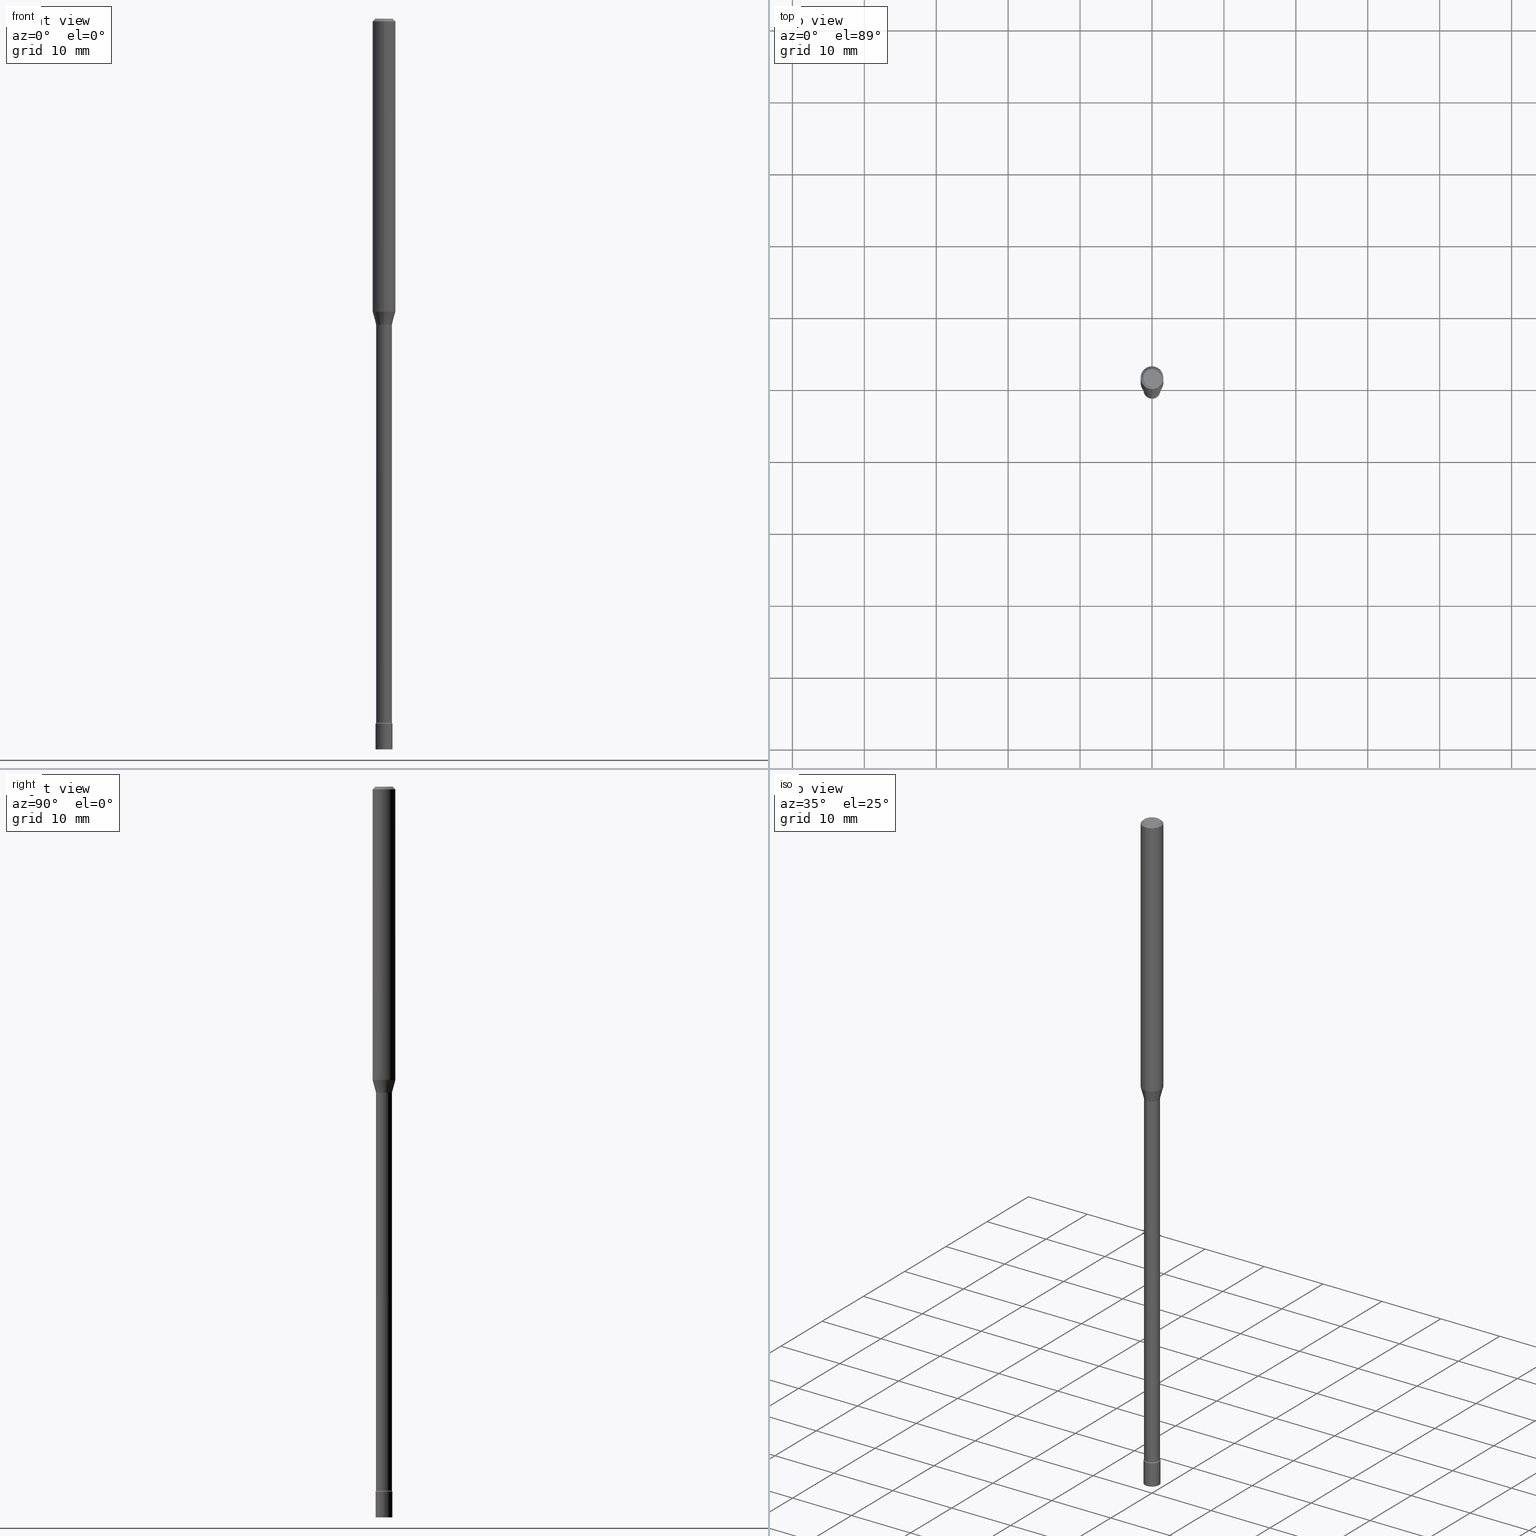
[diagram: canonical four-view strip — front | top / right | iso, engineering-drawing reading convention]
A machine part, canonical four-view strip (front | top / right | iso — engineering-drawing reading convention). The complete STEP part file that produces these views, byte-faithful:
ISO-10303-21;
HEADER;
FILE_DESCRIPTION (( 'STEP AP203' ),
    '1' );
FILE_NAME ('03691.STEP',
    '2024-03-08T22:39:06',
    ( '' ),
    ( '' ),
    'SwSTEP 2.0',
    'SolidWorks 2023',
    '' );
FILE_SCHEMA (( 'CONFIG_CONTROL_DESIGN' ));
ENDSEC;

DATA;
#1 = ADVANCED_FACE ( 'NONE', ( #225 ), #301, .T. ) ;
#2 = DIRECTION ( 'NONE',  ( -6.982962677686265922E-15, -1.000000000000000000, 3.491503379829358558E-15 ) ) ;
#3 = EDGE_LOOP ( 'NONE', ( #509, #279 ) ) ;
#4 = TOROIDAL_SURFACE ( 'NONE', #190, 0.05870000000000027973, 0.01500000000000003587 ) ;
#5 = CARTESIAN_POINT ( 'NONE',  ( 3.247077645125057656E-16, 0.04649999999998652433, -3.859999999999999876 ) ) ;
#6 = COORDINATED_UNIVERSAL_TIME_OFFSET ( 5, 0, .BEHIND. ) ;
#7 = CIRCLE ( 'NONE', #300, 0.01500000000000001853 ) ;
#8 = DIRECTION ( 'NONE',  ( -6.982962677686266711E-15, -1.000000000000000000, 6.179098042681422745E-15 ) ) ;
#9 = PRODUCT_DEFINITION ( 'UNKNOWN', '', #506, #215 ) ;
#10 = PERSON_AND_ORGANIZATION ( #109, #440 ) ;
#11 = CARTESIAN_POINT ( 'NONE',  ( 7.070506196117639587E-46, -1.009493623102914564E-31, -2.891286398102390037E-17 ) ) ;
#12 = DIRECTION ( 'NONE',  ( -2.445453415046726170E-29, 3.491503379829358558E-15, 1.000000000000000000 ) ) ;
#13 = CIRCLE ( 'NONE', #458, 0.01500000000000003587 ) ;
#14 = CARTESIAN_POINT ( 'NONE',  ( 0.000000000000000000, 0.000000000000000000, 0.000000000000000000 ) ) ;
#15 = FACE_OUTER_BOUND ( 'NONE', #467, .T. ) ;
#16 = CARTESIAN_POINT ( 'NONE',  ( 4.100963720950633802E-29, -5.855163138318515071E-15, -1.676974787463810790 ) ) ;
#17 = VERTEX_POINT ( 'NONE', #477 ) ;
#18 = CIRCLE ( 'NONE', #317, 0.04649999999999999967 ) ;
#19 = APPROVAL_PERSON_ORGANIZATION ( #117, #461, #275 ) ;
#20 = VERTEX_POINT ( 'NONE', #69 ) ;
#21 = ADVANCED_FACE ( 'NONE', ( #273 ), #162, .F. ) ;
#22 = VERTEX_POINT ( 'NONE', #400 ) ;
#23 = AXIS2_PLACEMENT_3D ( 'NONE', #501, #455, #213 ) ;
#24 = EDGE_LOOP ( 'NONE', ( #55, #57, #505, #320 ) ) ;
#25 = AXIS2_PLACEMENT_3D ( 'NONE', #334, #371, #404 ) ;
#26 = CIRCLE ( 'NONE', #169, 0.04370000000000000273 ) ;
#27 = CARTESIAN_POINT ( 'NONE',  ( 9.418108784244767125E-29, -1.344673280196705640E-14, -3.851273030308292267 ) ) ;
#28 = ORIENTED_EDGE ( 'NONE', *, *, #395, .T. ) ;
#29 = CARTESIAN_POINT ( 'NONE',  ( 3.105071755271645895E-16, 0.04370000000000012069, -1.525786976985433665E-16 ) ) ;
#30 = DIRECTION ( 'NONE',  ( -2.445453415046726170E-29, 3.491503379829358558E-15, 1.000000000000000000 ) ) ;
#31 = ORIENTED_EDGE ( 'NONE', *, *, #395, .F. ) ;
#32 = COORDINATED_UNIVERSAL_TIME_OFFSET ( 5, 0, .BEHIND. ) ;
#33 = MANIFOLD_SOLID_BREP ( 'Body-Move/Copy2[1]', #343 ) ;
#34 = CARTESIAN_POINT ( 'NONE',  ( 0.000000000000000000, 0.000000000000000000, 0.000000000000000000 ) ) ;
#35 = CC_DESIGN_PERSON_AND_ORGANIZATION_ASSIGNMENT ( #10, #333, ( #9 ) ) ;
#36 = FACE_OUTER_BOUND ( 'NONE', #193, .T. ) ;
#37 = LINE ( 'NONE', #368, #500 ) ;
#38 = AXIS2_PLACEMENT_3D ( 'NONE', #196, #166, #513 ) ;
#39 = EDGE_CURVE ( 'NONE', #22, #392, #96, .T. ) ;
#40 = DIRECTION ( 'NONE',  ( -1.000000000000000000, 6.982962677686265922E-15, -4.883557194083112340E-29 ) ) ;
#41 = CLOSED_SHELL ( 'NONE', ( #123, #484, #21, #465, #182, #154, #471, #426, #474, #48, #446, #100, #210, #324 ) ) ;
#42 = DATE_AND_TIME ( #407, #491 ) ;
#43 = CIRCLE ( 'NONE', #373, 0.06250000000000000000 ) ;
#44 = ORIENTED_EDGE ( 'NONE', *, *, #303, .F. ) ;
#45 = DIRECTION ( 'NONE',  ( -2.445468806185136597E-29, 3.491481338843145583E-15, 1.000000000000000000 ) ) ;
#46 = LINE ( 'NONE', #211, #206 ) ;
#47 = CYLINDRICAL_SURFACE ( 'NONE', #25, 0.04370000000000012069 ) ;
#48 = ADVANCED_FACE ( 'NONE', ( #437 ), #200, .F. ) ;
#49 = DIRECTION ( 'NONE',  ( -6.982962677686266711E-15, -1.000000000000000000, 3.491503379829358558E-15 ) ) ;
#50 = AXIS2_PLACEMENT_3D ( 'NONE', #179, #87, #495 ) ;
#51 = CONICAL_SURFACE ( 'NONE', #252, 0.04421111260566398804, 0.2617993877991500740 ) ;
#52 = EDGE_CURVE ( 'NONE', #188, #392, #13, .T. ) ;
#53 = CARTESIAN_POINT ( 'NONE',  ( 3.204547738279003487E-16, 0.04369999999998679108, -3.851273030308292267 ) ) ;
#54 = PERSON_AND_ORGANIZATION ( #109, #440 ) ;
#55 = ORIENTED_EDGE ( 'NONE', *, *, #138, .F. ) ;
#56 = DIRECTION ( 'NONE',  ( -2.445453415046726170E-29, 3.491503379829358558E-15, 1.000000000000000000 ) ) ;
#57 = ORIENTED_EDGE ( 'NONE', *, *, #296, .T. ) ;
#58 = CC_DESIGN_PERSON_AND_ORGANIZATION_ASSIGNMENT ( #54, #375, ( #506 ) ) ;
#59 = ORIENTED_EDGE ( 'NONE', *, *, #223, .T. ) ;
#60 = DIRECTION ( 'NONE',  ( -2.445468806185136877E-29, 3.491481338843145188E-15, 1.000000000000000000 ) ) ;
#61 = VERTEX_POINT ( 'NONE', #233 ) ;
#62 = VERTEX_POINT ( 'NONE', #269 ) ;
#63 = EDGE_LOOP ( 'NONE', ( #66, #59 ) ) ;
#64 = FACE_OUTER_BOUND ( 'NONE', #3, .T. ) ;
#65 = CARTESIAN_POINT ( 'NONE',  ( -3.051554690148488471E-16, -0.04370000000000585916, -1.676974787463810568 ) ) ;
#66 = ORIENTED_EDGE ( 'NONE', *, *, #376, .T. ) ;
#67 = SECURITY_CLASSIFICATION ( '', '', #72 ) ;
#68 = VECTOR ( 'NONE', #125, 39.37007874015748854 ) ;
#69 = CARTESIAN_POINT ( 'NONE',  ( -4.364351673553521278E-16, -0.06250000000000556499, -1.604837444817704739 ) ) ;
#70 = DIRECTION ( 'NONE',  ( 1.839019923739598738E-15, 0.2588190451025247363, 0.9659258262890673130 ) ) ;
#71 = ORIENTED_EDGE ( 'NONE', *, *, #138, .T. ) ;
#72 = SECURITY_CLASSIFICATION_LEVEL ( 'unclassified' ) ;
#73 = EDGE_CURVE ( 'NONE', #106, #188, #130, .T. ) ;
#74 = DIRECTION ( 'NONE',  ( -6.982962677686266711E-15, -1.000000000000000000, 6.179098042681422745E-15 ) ) ;
#75 = PERSON_AND_ORGANIZATION ( #109, #440 ) ;
#76 = ADVANCED_FACE ( 'NONE', ( #64 ), #192, .T. ) ;
#77 = FACE_OUTER_BOUND ( 'NONE', #378, .T. ) ;
#78 = CARTESIAN_POINT ( 'NONE',  ( 0.04649999999999999967, -1.380182573244695311E-14, -3.859999999999999876 ) ) ;
#79 = APPROVAL_STATUS ( 'not_yet_approved' ) ;
#80 = LOCAL_TIME ( 17, 39, 6.000000000000000000, #127 ) ;
#81 = AXIS2_PLACEMENT_3D ( 'NONE', #410, #451, #2 ) ;
#82 = DIRECTION ( 'NONE',  ( -2.445453415046726170E-29, 3.491503379829358558E-15, 1.000000000000000000 ) ) ;
#83 = ORIENTED_EDGE ( 'NONE', *, *, #194, .F. ) ;
#84 = UNCERTAINTY_MEASURE_WITH_UNIT (LENGTH_MEASURE( 1.000000000000000082E-05 ), #240, 'distance_accuracy_value', 'NONE');
#85 = FACE_OUTER_BOUND ( 'NONE', #241, .T. ) ;
#86 = EDGE_CURVE ( 'NONE', #422, #514, #228, .T. ) ;
#87 = DIRECTION ( 'NONE',  ( 2.445453415046726170E-29, -3.491503379829358558E-15, -1.000000000000000000 ) ) ;
#88 = FACE_OUTER_BOUND ( 'NONE', #394, .T. ) ;
#89 = APPLICATION_PROTOCOL_DEFINITION ( 'international standard', 'config_control_design', 1994, #469 ) ;
#90 = CARTESIAN_POINT ( 'NONE',  ( 9.439509591874626995E-29, -1.347711796793454082E-14, -3.859999999999999876 ) ) ;
#91 = DIRECTION ( 'NONE',  ( -6.982962677686266711E-15, -1.000000000000000000, 0.000000000000000000 ) ) ;
#92 = DATE_TIME_ROLE ( 'creation_date' ) ;
#93 = AXIS2_PLACEMENT_3D ( 'NONE', #402, #195, #355 ) ;
#94 = AXIS2_PLACEMENT_3D ( 'NONE', #5, #335, #295 ) ;
#95 = APPROVAL_DATE_TIME ( #457, #160 ) ;
#96 = CIRCLE ( 'NONE', #387, 0.04649999999999999967 ) ;
#97 = CIRCLE ( 'NONE', #93, 0.06250000000000000000 ) ;
#98 = EDGE_CURVE ( 'NONE', #61, #504, #165, .T. ) ;
#99 = ORIENTED_EDGE ( 'NONE', *, *, #86, .T. ) ;
#100 = ADVANCED_FACE ( 'NONE', ( #246 ), #4, .F. ) ;
#101 = ORIENTED_EDGE ( 'NONE', *, *, #356, .F. ) ;
#102 = CARTESIAN_POINT ( 'NONE',  ( 0.04649999999999999967, -3.247077645124114474E-16, 2.267422200745110326E-30 ) ) ;
#103 = EDGE_LOOP ( 'NONE', ( #268, #450, #323, #83 ) ) ;
#104 = AXIS2_PLACEMENT_3D ( 'NONE', #312, #350, #508 ) ;
#105 = DIRECTION ( 'NONE',  ( -2.445453415046726170E-29, 3.491503379829358558E-15, 1.000000000000000000 ) ) ;
#106 = VERTEX_POINT ( 'NONE', #157 ) ;
#107 = ORIENTED_EDGE ( 'NONE', *, *, #39, .F. ) ;
#108 = APPROVAL_DATE_TIME ( #112, #461 ) ;
#109 = PERSON ( 'UNSPECIFIED', 'UNSPECIFIED', 'UNSPECIFIED', ('UNSPECIFIED'), ('UNSPECIFIED'), ('UNSPECIFIED') ) ;
#110 = DIRECTION ( 'NONE',  ( 1.000000000000000000, -7.105427357601001070E-15, 4.926315778466314520E-29 ) ) ;
#111 = ORIENTED_EDGE ( 'NONE', *, *, #303, .T. ) ;
#112 = DATE_AND_TIME ( #236, #377 ) ;
#113 = DIRECTION ( 'NONE',  ( -6.982962677686265922E-15, -1.000000000000000000, 3.491503379829358558E-15 ) ) ;
#114 = DIRECTION ( 'NONE',  ( -6.982962677686265922E-15, -1.000000000000000000, 4.370956789862821150E-15 ) ) ;
#115 = CIRCLE ( 'NONE', #23, 0.04649999999999999967 ) ;
#116 = ORIENTED_EDGE ( 'NONE', *, *, #356, .T. ) ;
#117 = PERSON_AND_ORGANIZATION ( #109, #440 ) ;
#118 = AXIS2_PLACEMENT_3D ( 'NONE', #258, #207, #416 ) ;
#119 = AXIS2_PLACEMENT_3D ( 'NONE', #438, #401, #229 ) ;
#120 = DIRECTION ( 'NONE',  ( 6.982962677686265922E-15, 1.000000000000000000, -3.491503379829358163E-15 ) ) ;
#121 = CARTESIAN_POINT ( 'NONE',  ( -0.04649999999999999967, -1.339111928952511588E-14, -4.000000000000000000 ) ) ;
#122 = ORIENTED_EDGE ( 'NONE', *, *, #52, .F. ) ;
#123 = ADVANCED_FACE ( 'NONE', ( #441 ), #217, .F. ) ;
#124 = DIRECTION ( 'NONE',  ( -6.982962677686265922E-15, -1.000000000000000000, 4.370956789862821150E-15 ) ) ;
#125 = DIRECTION ( 'NONE',  ( -1.807323732225328562E-15, -0.2588190451025179639, 0.9659258262890690894 ) ) ;
#126 = LENGTH_MEASURE_WITH_UNIT ( LENGTH_MEASURE( 0.02539999999999999897 ), #308 );
#127 = COORDINATED_UNIVERSAL_TIME_OFFSET ( 5, 0, .BEHIND. ) ;
#128 = CARTESIAN_POINT ( 'NONE',  ( -4.287811248607203282E-16, -0.06250000000000005551, -0.01499999999999981209 ) ) ;
#129 = DIRECTION ( 'NONE',  ( -2.445453415046726170E-29, 3.491503379829358558E-15, 1.000000000000000000 ) ) ;
#130 = CIRCLE ( 'NONE', #406, 0.04370000000000023865 ) ;
#131 = CARTESIAN_POINT ( 'NONE',  ( 9.418108784244767125E-29, -1.344673280196705640E-14, -3.851273030308292267 ) ) ;
#132 = MECHANICAL_CONTEXT ( 'NONE', #305, 'mechanical' ) ;
#133 = CARTESIAN_POINT ( 'NONE',  ( 4.091469772184757463E-29, -5.841608124757420755E-15, -1.673092501787272868 ) ) ;
#134 = CARTESIAN_POINT ( 'NONE',  ( 0.000000000000000000, 0.000000000000000000, 0.000000000000000000 ) ) ;
#135 = VERTEX_POINT ( 'NONE', #277 ) ;
#136 = AXIS2_PLACEMENT_3D ( 'NONE', #370, #488, #331 ) ;
#137 = DIRECTION ( 'NONE',  ( 1.000000000000000000, -6.982962677686267499E-15, 4.876176775795936353E-29 ) ) ;
#138 = EDGE_CURVE ( 'NONE', #188, #306, #431, .T. ) ;
#139 = CARTESIAN_POINT ( 'NONE',  ( 4.440892098501019606E-16, 0.06249999999999443501, -1.604837444817705405 ) ) ;
#140 = DIRECTION ( 'NONE',  ( -6.982962677686266711E-15, -1.000000000000000000, 3.491503379829358558E-15 ) ) ;
#141 = LINE ( 'NONE', #492, #430 ) ;
#142 = COORDINATED_UNIVERSAL_TIME_OFFSET ( 5, 0, .BEHIND. ) ;
#143 = FACE_OUTER_BOUND ( 'NONE', #24, .T. ) ;
#144 = AXIS2_PLACEMENT_3D ( 'NONE', #180, #220, #140 ) ;
#145 = CIRCLE ( 'NONE', #189, 0.04421111260566398804 ) ;
#146 = EDGE_CURVE ( 'NONE', #514, #504, #97, .T. ) ;
#147 = AXIS2_PLACEMENT_3D ( 'NONE', #396, #163, #124 ) ;
#148 = DIRECTION ( 'NONE',  ( -6.982962677686266711E-15, -1.000000000000000000, 6.251368406554377784E-15 ) ) ;
#149 = ORIENTED_EDGE ( 'NONE', *, *, #248, .F. ) ;
#150 = ORIENTED_EDGE ( 'NONE', *, *, #372, .T. ) ;
#151 = EDGE_LOOP ( 'NONE', ( #44, #116, #184, #230 ) ) ;
#152 = CIRCLE ( 'NONE', #433, 0.04370000000000023865 ) ;
#153 = PRODUCT_DEFINITION_SHAPE ( 'NONE', 'NONE',  #9 ) ;
#154 = ADVANCED_FACE ( 'NONE', ( #36 ), #51, .T. ) ;
#155 = DIRECTION ( 'NONE',  ( -6.982962677686266711E-15, -1.000000000000000000, 0.000000000000000000 ) ) ;
#156 = ORIENTED_EDGE ( 'NONE', *, *, #202, .T. ) ;
#157 = CARTESIAN_POINT ( 'NONE',  ( -3.051554690147972753E-16, -0.04370000000001368623, -3.851273030308292267 ) ) ;
#158 = EDGE_CURVE ( 'NONE', #20, #422, #351, .T. ) ;
#159 = CARTESIAN_POINT ( 'NONE',  ( 4.100989531501698388E-29, -5.855126176140345027E-15, -1.676974787463810790 ) ) ;
#160 = APPROVAL ( #260, 'UNSPECIFIED' ) ;
#161 = ORIENTED_EDGE ( 'NONE', *, *, #292, .F. ) ;
#162 = TOROIDAL_SURFACE ( 'NONE', #104, 0.05870000000000027973, 0.01500000000000003587 ) ;
#163 = DIRECTION ( 'NONE',  ( -2.445453415046726170E-29, 3.491503379829358558E-15, 1.000000000000000000 ) ) ;
#164 = DIRECTION ( 'NONE',  ( -6.982962677686268288E-15, -1.000000000000000000, 0.000000000000000000 ) ) ;
#165 = LINE ( 'NONE', #128, #507 ) ;
#166 = DIRECTION ( 'NONE',  ( -2.445453415046726170E-29, 3.491503379829358558E-15, 1.000000000000000000 ) ) ;
#167 = CARTESIAN_POINT ( 'NONE',  ( -3.087245492642954856E-16, -0.04421111260566982365, -1.673092501787272646 ) ) ;
#168 = DIRECTION ( 'NONE',  ( 0.000000000000000000, 0.000000000000000000, 1.000000000000000000 ) ) ;
#169 = AXIS2_PLACEMENT_3D ( 'NONE', #237, #105, #384 ) ;
#170 = AXIS2_PLACEMENT_3D ( 'NONE', #134, #168, #291 ) ;
#171 = AXIS2_PLACEMENT_3D ( 'NONE', #517, #432, #164 ) ;
#172 = CARTESIAN_POINT ( 'NONE',  ( -0.04649999999999999967, -1.339111928952511588E-14, -3.859999999999999876 ) ) ;
#173 = CARTESIAN_POINT ( 'NONE',  ( -4.364351673553912750E-16, -0.06250000000000005551, -0.01499999999999981209 ) ) ;
#174 = PERSON_AND_ORGANIZATION_ROLE ( 'design_owner' ) ;
#175 = FACE_OUTER_BOUND ( 'NONE', #199, .T. ) ;
#176 = CC_DESIGN_PERSON_AND_ORGANIZATION_ASSIGNMENT ( #75, #473, ( #67 ) ) ;
#177 = AXIS2_PLACEMENT_3D ( 'NONE', #249, #413, #490 ) ;
#178 = PRODUCT_RELATED_PRODUCT_CATEGORY ( 'detail', '', ( #496 ) ) ;
#179 = CARTESIAN_POINT ( 'NONE',  ( 3.668180122570096699E-31, -5.237255069744048462E-17, -0.01500000000000003067 ) ) ;
#180 = CARTESIAN_POINT ( 'NONE',  ( 7.070506196117639587E-46, -1.009493623102914564E-31, -2.891286398102390037E-17 ) ) ;
#181 = CARTESIAN_POINT ( 'NONE',  ( 4.091469772184757463E-29, -5.841608124757420755E-15, -1.673092501787272868 ) ) ;
#182 = ADVANCED_FACE ( 'NONE', ( #77 ), #254, .T. ) ;
#183 = AXIS2_PLACEMENT_3D ( 'NONE', #34, #247, #239 ) ;
#184 = ORIENTED_EDGE ( 'NONE', *, *, #292, .T. ) ;
#185 = ORIENTED_EDGE ( 'NONE', *, *, #489, .F. ) ;
#186 = EDGE_CURVE ( 'NONE', #17, #514, #46, .T. ) ;
#187 = CIRCLE ( 'NONE', #365, 0.04749999999999999362 ) ;
#188 = VERTEX_POINT ( 'NONE', #53 ) ;
#189 = AXIS2_PLACEMENT_3D ( 'NONE', #133, #250, #8 ) ;
#190 = AXIS2_PLACEMENT_3D ( 'NONE', #242, #510, #284 ) ;
#191 = EDGE_CURVE ( 'NONE', #266, #306, #485, .T. ) ;
#192 = PLANE ( 'NONE',  #459 ) ;
#193 = EDGE_LOOP ( 'NONE', ( #498, #111, #235, #161 ) ) ;
#194 = EDGE_CURVE ( 'NONE', #135, #263, #463, .T. ) ;
#195 = DIRECTION ( 'NONE',  ( -2.445453415046726170E-29, 3.491503379829358558E-15, 1.000000000000000000 ) ) ;
#196 = CARTESIAN_POINT ( 'NONE',  ( 4.091469772184757463E-29, -5.841608124757420755E-15, -1.673092501787272868 ) ) ;
#197 = ORIENTED_EDGE ( 'NONE', *, *, #98, .T. ) ;
#198 = DIRECTION ( 'NONE',  ( 2.445453415046726170E-29, -3.491503379829358163E-15, -1.000000000000000000 ) ) ;
#199 = EDGE_LOOP ( 'NONE', ( #270, #346, #298, #434 ) ) ;
#200 = PLANE ( 'NONE',  #418 ) ;
#201 = DIRECTION ( 'NONE',  ( -2.445468806185136597E-29, 3.491481338843145583E-15, 1.000000000000000000 ) ) ;
#202 = EDGE_CURVE ( 'NONE', #464, #263, #115, .T. ) ;
#203 = DIRECTION ( 'NONE',  ( -2.445453415046725890E-29, 3.491503379829358163E-15, 1.000000000000000000 ) ) ;
#204 = AXIS2_PLACEMENT_3D ( 'NONE', #453, #45, #137 ) ;
#205 = APPROVAL_PERSON_ORGANIZATION ( #443, #435, #445 ) ;
#206 = VECTOR ( 'NONE', #502, 39.37007874015748143 ) ;
#207 = DIRECTION ( 'NONE',  ( -2.445468806185136597E-29, 3.491481338843145583E-15, 1.000000000000000000 ) ) ;
#208 = LINE ( 'NONE', #329, #276 ) ;
#209 = DIRECTION ( 'NONE',  ( -2.445468806185136597E-29, 3.491481338843145583E-15, 1.000000000000000000 ) ) ;
#210 = ADVANCED_FACE ( 'NONE', ( #143 ), #415, .T. ) ;
#211 = CARTESIAN_POINT ( 'NONE',  ( 4.364351673553919652E-16, 0.06249999999999995143, -0.01500000000000024751 ) ) ;
#212 = CYLINDRICAL_SURFACE ( 'NONE', #177, 0.06250000000000000000 ) ;
#213 = DIRECTION ( 'NONE',  ( 1.000000000000000000, -6.982962677686280121E-15, 0.000000000000000000 ) ) ;
#214 =( GEOMETRIC_REPRESENTATION_CONTEXT ( 3 ) GLOBAL_UNCERTAINTY_ASSIGNED_CONTEXT ( ( #84 ) ) GLOBAL_UNIT_ASSIGNED_CONTEXT ( ( #240, #282, #439 ) ) REPRESENTATION_CONTEXT ( 'NONE', 'WORKASPACE' ) );
#215 = DESIGN_CONTEXT ( 'detailed design', #469, 'design' ) ;
#216 = CARTESIAN_POINT ( 'NONE',  ( -3.087245492642954856E-16, -0.04421111260566982365, -1.673092501787272646 ) ) ;
#217 = TOROIDAL_SURFACE ( 'NONE', #287, 0.05870000000000000218, 0.01500000000000001853 ) ;
#218 = DATE_AND_TIME ( #412, #417 ) ;
#219 = ORIENTED_EDGE ( 'NONE', *, *, #519, .F. ) ;
#220 = DIRECTION ( 'NONE',  ( -2.445453415046726170E-29, 3.491503379829358558E-15, 1.000000000000000000 ) ) ;
#221 = ORIENTED_EDGE ( 'NONE', *, *, #86, .F. ) ;
#222 = ORIENTED_EDGE ( 'NONE', *, *, #283, .T. ) ;
#223 = EDGE_CURVE ( 'NONE', #61, #17, #272, .T. ) ;
#224 = ORIENTED_EDGE ( 'NONE', *, *, #186, .F. ) ;
#225 = FACE_OUTER_BOUND ( 'NONE', #487, .T. ) ;
#226 = ORIENTED_EDGE ( 'NONE', *, *, #255, .T. ) ;
#227 = VECTOR ( 'NONE', #520, 39.37007874015748143 ) ;
#228 = LINE ( 'NONE', #389, #482 ) ;
#229 = DIRECTION ( 'NONE',  ( -6.982962677686265922E-15, -1.000000000000000000, 3.491503379829358558E-15 ) ) ;
#230 = ORIENTED_EDGE ( 'NONE', *, *, #283, .F. ) ;
#231 = AXIS2_PLACEMENT_3D ( 'NONE', #353, #319, #478 ) ;
#232 = EDGE_CURVE ( 'NONE', #306, #266, #26, .T. ) ;
#233 = CARTESIAN_POINT ( 'NONE',  ( -3.773273898774340269E-16, -0.04749999999999999362, 1.369335465608705988E-16 ) ) ;
#234 = CARTESIAN_POINT ( 'NONE',  ( 3.141388490183042875E-16, 0.04421111260565814549, -1.673092501787273090 ) ) ;
#235 = ORIENTED_EDGE ( 'NONE', *, *, #158, .F. ) ;
#236 = CALENDAR_DATE ( 2024, 8, 3 ) ;
#237 = CARTESIAN_POINT ( 'NONE',  ( 4.100963720950633802E-29, -5.855163138318515071E-15, -1.676974787463810790 ) ) ;
#238 = DIRECTION ( 'NONE',  ( -2.445453415046726170E-29, 3.491503379829358558E-15, 1.000000000000000000 ) ) ;
#239 = DIRECTION ( 'NONE',  ( 1.000000000000000000, -6.982962677686267499E-15, 4.876176775795936353E-29 ) ) ;
#240 =( CONVERSION_BASED_UNIT ( 'INCH', #126 ) LENGTH_UNIT ( ) NAMED_UNIT ( #253 ) );
#241 = EDGE_LOOP ( 'NONE', ( #475, #71, #274, #311 ) ) ;
#242 = CARTESIAN_POINT ( 'NONE',  ( 9.418168059721031797E-29, -1.344664791611129249E-14, -3.851273030308291379 ) ) ;
#243 = FACE_OUTER_BOUND ( 'NONE', #313, .T. ) ;
#244 = CONICAL_SURFACE ( 'NONE', #349, 0.04421111260566398804, 0.2617993877991500740 ) ;
#245 = DIRECTION ( 'NONE',  ( -2.445468806185136877E-29, 3.491481338843145188E-15, 1.000000000000000000 ) ) ;
#246 = FACE_OUTER_BOUND ( 'NONE', #267, .T. ) ;
#247 = DIRECTION ( 'NONE',  ( -2.445468806185136597E-29, 3.491481338843145583E-15, 1.000000000000000000 ) ) ;
#248 = EDGE_CURVE ( 'NONE', #360, #464, #208, .T. ) ;
#249 = CARTESIAN_POINT ( 'NONE',  ( 0.000000000000000000, 0.000000000000000000, 0.000000000000000000 ) ) ;
#250 = DIRECTION ( 'NONE',  ( -2.445453415046726170E-29, 3.491503379829358558E-15, 1.000000000000000000 ) ) ;
#251 = ORIENTED_EDGE ( 'NONE', *, *, #414, .F. ) ;
#252 = AXIS2_PLACEMENT_3D ( 'NONE', #318, #436, #74 ) ;
#253 = DIMENSIONAL_EXPONENTS ( 1.000000000000000000, 0.000000000000000000, 0.000000000000000000, 0.000000000000000000, 0.000000000000000000, 0.000000000000000000, 0.000000000000000000 ) ;
#254 = CYLINDRICAL_SURFACE ( 'NONE', #81, 0.06250000000000000000 ) ;
#255 = EDGE_CURVE ( 'NONE', #106, #22, #299, .T. ) ;
#256 = FACE_OUTER_BOUND ( 'NONE', #511, .T. ) ;
#257 = COORDINATED_UNIVERSAL_TIME_OFFSET ( 5, 0, .BEHIND. ) ;
#258 = CARTESIAN_POINT ( 'NONE',  ( 9.781875224740546387E-29, -1.396592535537258233E-14, -4.000000000000000000 ) ) ;
#259 = DIRECTION ( 'NONE',  ( -2.445453415046726170E-29, 3.491503379829358558E-15, 1.000000000000000000 ) ) ;
#260 = APPROVAL_STATUS ( 'not_yet_approved' ) ;
#261 = VECTOR ( 'NONE', #60, 39.37007874015748143 ) ;
#262 = EDGE_LOOP ( 'NONE', ( #107, #185 ) ) ;
#263 = VERTEX_POINT ( 'NONE', #78 ) ;
#264 = CC_DESIGN_SECURITY_CLASSIFICATION ( #67, ( #506 ) ) ;
#265 = CC_DESIGN_PERSON_AND_ORGANIZATION_ASSIGNMENT ( #493, #468, ( #506 ) ) ;
#266 = VERTEX_POINT ( 'NONE', #65 ) ;
#267 = EDGE_LOOP ( 'NONE', ( #122, #408, #226, #398 ) ) ;
#268 = ORIENTED_EDGE ( 'NONE', *, *, #423, .T. ) ;
#269 = CARTESIAN_POINT ( 'NONE',  ( 3.791140294342030501E-16, 0.04421111260565814549, -1.673092501787273090 ) ) ;
#270 = ORIENTED_EDGE ( 'NONE', *, *, #98, .F. ) ;
#271 = SHAPE_DEFINITION_REPRESENTATION ( #153, #388 ) ;
#272 = CIRCLE ( 'NONE', #144, 0.04749999999999999362 ) ;
#273 = FACE_OUTER_BOUND ( 'NONE', #309, .T. ) ;
#274 = ORIENTED_EDGE ( 'NONE', *, *, #191, .F. ) ;
#275 = APPROVAL_ROLE ( '' ) ;
#276 = VECTOR ( 'NONE', #245, 39.37007874015748143 ) ;
#277 = CARTESIAN_POINT ( 'NONE',  ( 0.04649999999999999967, -1.429063311988499462E-14, -4.000000000000000000 ) ) ;
#278 = CARTESIAN_POINT ( 'NONE',  ( 4.170885858912197960E-16, 0.05869999999999414575, -1.676974787463811012 ) ) ;
#279 = ORIENTED_EDGE ( 'NONE', *, *, #336, .F. ) ;
#280 = DIRECTION ( 'NONE',  ( -2.438088387897960049E-29, 3.491481338843145188E-15, 1.000000000000000000 ) ) ;
#281 = DIRECTION ( 'NONE',  ( -6.982962677686265922E-15, -1.000000000000000000, 0.000000000000000000 ) ) ;
#282 =( NAMED_UNIT ( * ) PLANE_ANGLE_UNIT ( ) SI_UNIT ( $, .RADIAN. ) );
#283 = EDGE_CURVE ( 'NONE', #422, #20, #43, .T. ) ;
#284 = DIRECTION ( 'NONE',  ( -6.982962677686265922E-15, -1.000000000000000000, 3.491503379829358163E-15 ) ) ;
#285 = CYLINDRICAL_SURFACE ( 'NONE', #183, 0.04649999999999999967 ) ;
#286 = CC_DESIGN_APPROVAL ( #461, ( #67 ) ) ;
#287 = AXIS2_PLACEMENT_3D ( 'NONE', #159, #393, #113 ) ;
#288 = FACE_OUTER_BOUND ( 'NONE', #103, .T. ) ;
#289 = PERSON_AND_ORGANIZATION ( #109, #440 ) ;
#290 = FACE_OUTER_BOUND ( 'NONE', #151, .T. ) ;
#291 = DIRECTION ( 'NONE',  ( 1.000000000000000000, 0.000000000000000000, 0.000000000000000000 ) ) ;
#292 = EDGE_CURVE ( 'NONE', #380, #20, #480, .T. ) ;
#293 = DIRECTION ( 'NONE',  ( -2.445453415046726170E-29, 3.491503379829358558E-15, 1.000000000000000000 ) ) ;
#294 = DIRECTION ( 'NONE',  ( 1.000000000000000000, -6.982962677686280121E-15, 0.000000000000000000 ) ) ;
#295 = DIRECTION ( 'NONE',  ( -6.982962677686265922E-15, -1.000000000000000000, 3.491503379829358163E-15 ) ) ;
#296 = EDGE_CURVE ( 'NONE', #188, #106, #152, .T. ) ;
#297 = CALENDAR_DATE ( 2024, 8, 3 ) ;
#298 = ORIENTED_EDGE ( 'NONE', *, *, #186, .T. ) ;
#299 = CIRCLE ( 'NONE', #171, 0.01500000000000003587 ) ;
#300 = AXIS2_PLACEMENT_3D ( 'NONE', #278, #397, #326 ) ;
#301 = PLANE ( 'NONE',  #328 ) ;
#302 = ORIENTED_EDGE ( 'NONE', *, *, #336, .T. ) ;
#303 = EDGE_CURVE ( 'NONE', #62, #422, #403, .T. ) ;
#304 = ORIENTED_EDGE ( 'NONE', *, *, #146, .F. ) ;
#305 = APPLICATION_CONTEXT ( 'configuration controlled 3d designs of mechanical parts and assemblies' ) ;
#306 = VERTEX_POINT ( 'NONE', #363 ) ;
#307 = APPROVAL_PERSON_ORGANIZATION ( #419, #160, #338 ) ;
#308 =( LENGTH_UNIT ( ) NAMED_UNIT ( * ) SI_UNIT ( $, .METRE. ) );
#309 = EDGE_LOOP ( 'NONE', ( #339, #466, #421, #379 ) ) ;
#310 = AXIS2_PLACEMENT_3D ( 'NONE', #14, #56, #341 ) ;
#311 = ORIENTED_EDGE ( 'NONE', *, *, #494, .F. ) ;
#312 = CARTESIAN_POINT ( 'NONE',  ( 9.418168059721031797E-29, -1.344664791611129249E-14, -3.851273030308291379 ) ) ;
#313 = EDGE_LOOP ( 'NONE', ( #424, #219, #472, #460 ) ) ;
#314 = DIRECTION ( 'NONE',  ( -4.851104656540964275E-15, -0.7071067811865500152, -0.7071067811865450192 ) ) ;
#315 = ORIENTED_EDGE ( 'NONE', *, *, #158, .T. ) ;
#316 = CALENDAR_DATE ( 2024, 8, 3 ) ;
#317 = AXIS2_PLACEMENT_3D ( 'NONE', #90, #209, #294 ) ;
#318 = CARTESIAN_POINT ( 'NONE',  ( 4.091469772184757463E-29, -5.841608124757420755E-15, -1.673092501787272868 ) ) ;
#319 = DIRECTION ( 'NONE',  ( -2.445453415046726170E-29, 3.491503379829358558E-15, 1.000000000000000000 ) ) ;
#320 = ORIENTED_EDGE ( 'NONE', *, *, #232, .F. ) ;
#321 = CARTESIAN_POINT ( 'NONE',  ( 3.316907271900976096E-16, 0.04749999999999999362, -1.803028425324064525E-16 ) ) ;
#322 = CARTESIAN_POINT ( 'NONE',  ( 3.924555210024319080E-29, -5.603295362657728599E-15, -1.604837444817704961 ) ) ;
#323 = ORIENTED_EDGE ( 'NONE', *, *, #420, .F. ) ;
#324 = ADVANCED_FACE ( 'NONE', ( #243 ), #344, .F. ) ;
#325 = DIRECTION ( 'NONE',  ( -6.982962677686265922E-15, -1.000000000000000000, 0.000000000000000000 ) ) ;
#326 = DIRECTION ( 'NONE',  ( 7.105427357601001859E-15, 1.000000000000000000, 0.000000000000000000 ) ) ;
#327 = AXIS2_PLACEMENT_3D ( 'NONE', #456, #12, #91 ) ;
#328 = AXIS2_PLACEMENT_3D ( 'NONE', #381, #280, #512 ) ;
#329 = CARTESIAN_POINT ( 'NONE',  ( -0.04649999999999999967, 3.304023721284465841E-16, -2.287304816968531530E-30 ) ) ;
#330 = CIRCLE ( 'NONE', #366, 0.04649999999999999967 ) ;
#331 = DIRECTION ( 'NONE',  ( 6.982962677686265922E-15, 1.000000000000000000, -3.483106191921935554E-15 ) ) ;
#332 = ADVANCED_FACE ( 'NONE', ( #288 ), #285, .T. ) ;
#333 = PERSON_AND_ORGANIZATION_ROLE ( 'creator' ) ;
#334 = CARTESIAN_POINT ( 'NONE',  ( 0.000000000000000000, 0.000000000000000000, 0.000000000000000000 ) ) ;
#335 = DIRECTION ( 'NONE',  ( -2.445453415046726170E-29, 3.491503379829358163E-15, 1.000000000000000000 ) ) ;
#336 = EDGE_CURVE ( 'NONE', #360, #135, #330, .T. ) ;
#337 = DIRECTION ( 'NONE',  ( -6.982962677686266711E-15, -1.000000000000000000, 6.179098042681422745E-15 ) ) ;
#338 = APPROVAL_ROLE ( '' ) ;
#339 = ORIENTED_EDGE ( 'NONE', *, *, #296, .F. ) ;
#340 = VECTOR ( 'NONE', #70, 39.37007874015748854 ) ;
#341 = DIRECTION ( 'NONE',  ( -6.982962677686265922E-15, -1.000000000000000000, 3.491503379829358163E-15 ) ) ;
#342 = CIRCLE ( 'NONE', #118, 0.04649999999999999967 ) ;
#343 = CLOSED_SHELL ( 'NONE', ( #332, #1, #383, #76 ) ) ;
#344 = TOROIDAL_SURFACE ( 'NONE', #119, 0.05870000000000000218, 0.01500000000000001853 ) ;
#345 = CC_DESIGN_DATE_AND_TIME_ASSIGNMENT ( #218, #92, ( #9 ) ) ;
#346 = ORIENTED_EDGE ( 'NONE', *, *, #376, .F. ) ;
#347 = ORIENTED_EDGE ( 'NONE', *, *, #232, .T. ) ;
#348 = EDGE_LOOP ( 'NONE', ( #101, #150, #347, #251 ) ) ;
#349 = AXIS2_PLACEMENT_3D ( 'NONE', #181, #293, #337 ) ;
#350 = DIRECTION ( 'NONE',  ( -2.445453415046726170E-29, 3.491503379829358558E-15, 1.000000000000000000 ) ) ;
#351 = CIRCLE ( 'NONE', #147, 0.06250000000000000000 ) ;
#352 = DATE_AND_TIME ( #316, #80 ) ;
#353 = CARTESIAN_POINT ( 'NONE',  ( 3.668180122570096699E-31, -5.237255069744048462E-17, -0.01500000000000003067 ) ) ;
#354 = ORIENTED_EDGE ( 'NONE', *, *, #223, .F. ) ;
#355 = DIRECTION ( 'NONE',  ( -6.982962677686265922E-15, -1.000000000000000000, 3.483106191921935554E-15 ) ) ;
#356 = EDGE_CURVE ( 'NONE', #62, #380, #409, .T. ) ;
#357 = CONICAL_SURFACE ( 'NONE', #136, 0.06250000000000000000, 0.7853981633974483900 ) ;
#358 = CARTESIAN_POINT ( 'NONE',  ( 3.247077645125092168E-16, 0.04649999999998603861, -4.000000000000000000 ) ) ;
#359 = EDGE_CURVE ( 'NONE', #504, #514, #391, .T. ) ;
#360 = VERTEX_POINT ( 'NONE', #121 ) ;
#361 = DIRECTION ( 'NONE',  ( 2.438088387897960049E-29, -3.491481338843145188E-15, -1.000000000000000000 ) ) ;
#362 = DIRECTION ( 'NONE',  ( 1.000000000000000000, -6.982962677686280121E-15, 0.000000000000000000 ) ) ;
#363 = CARTESIAN_POINT ( 'NONE',  ( 3.105071755272587598E-16, 0.04369999999999414630, -1.676974787463811012 ) ) ;
#364 = CARTESIAN_POINT ( 'NONE',  ( -4.098999091801428083E-16, -0.05870000000000585860, -1.676974787463810568 ) ) ;
#365 = AXIS2_PLACEMENT_3D ( 'NONE', #11, #259, #49 ) ;
#366 = AXIS2_PLACEMENT_3D ( 'NONE', #390, #201, #362 ) ;
#367 = MANIFOLD_SOLID_BREP ( 'Body-Move/Copy2[2]', #41 ) ;
#368 = CARTESIAN_POINT ( 'NONE',  ( -3.051554690148906567E-16, -0.04370000000000012069, 1.525786976985433665E-16 ) ) ;
#369 = APPROVAL_DATE_TIME ( #42, #435 ) ;
#370 = CARTESIAN_POINT ( 'NONE',  ( 3.668180122570096699E-31, -5.237255069744048462E-17, -0.01500000000000003067 ) ) ;
#371 = DIRECTION ( 'NONE',  ( -2.445453415046726170E-29, 3.491503379829358558E-15, 1.000000000000000000 ) ) ;
#372 = EDGE_CURVE ( 'NONE', #62, #306, #7, .T. ) ;
#373 = AXIS2_PLACEMENT_3D ( 'NONE', #322, #129, #114 ) ;
#374 = PLANE ( 'NONE',  #94 ) ;
#375 = PERSON_AND_ORGANIZATION_ROLE ( 'creator' ) ;
#376 = EDGE_CURVE ( 'NONE', #17, #61, #187, .T. ) ;
#377 = LOCAL_TIME ( 17, 39, 6.000000000000000000, #32 ) ;
#378 = EDGE_LOOP ( 'NONE', ( #315, #99, #427, #31 ) ) ;
#379 = ORIENTED_EDGE ( 'NONE', *, *, #255, .F. ) ;
#380 = VERTEX_POINT ( 'NONE', #216 ) ;
#381 = CARTESIAN_POINT ( 'NONE',  ( 9.439509591874626995E-29, -1.347711796793454082E-14, -3.859999999999999876 ) ) ;
#382 = DATE_TIME_ROLE ( 'classification_date' ) ;
#383 = ADVANCED_FACE ( 'NONE', ( #88 ), #447, .T. ) ;
#384 = DIRECTION ( 'NONE',  ( -6.982962677686266711E-15, -1.000000000000000000, 6.251368406554377784E-15 ) ) ;
#385 = AXIS2_PLACEMENT_3D ( 'NONE', #16, #497, #148 ) ;
#386 = CIRCLE ( 'NONE', #327, 0.04649999999999999967 ) ;
#387 = AXIS2_PLACEMENT_3D ( 'NONE', #481, #82, #155 ) ;
#388 = ADVANCED_BREP_SHAPE_REPRESENTATION ( '03691', ( #33, #367, #170 ), #214 ) ;
#389 = CARTESIAN_POINT ( 'NONE',  ( 4.440892098500625669E-16, 0.06250000000000000000, -2.182189612393349099E-16 ) ) ;
#390 = CARTESIAN_POINT ( 'NONE',  ( 9.781875224740546387E-29, -1.396592535537258233E-14, -4.000000000000000000 ) ) ;
#391 = CIRCLE ( 'NONE', #231, 0.06250000000000000000 ) ;
#392 = VERTEX_POINT ( 'NONE', #442 ) ;
#393 = DIRECTION ( 'NONE',  ( -2.445453415046726170E-29, 3.491503379829358558E-15, 1.000000000000000000 ) ) ;
#394 = EDGE_LOOP ( 'NONE', ( #149, #302, #425, #429 ) ) ;
#395 = EDGE_CURVE ( 'NONE', #20, #504, #141, .T. ) ;
#396 = CARTESIAN_POINT ( 'NONE',  ( 3.924555210024319080E-29, -5.603295362657728599E-15, -1.604837444817704961 ) ) ;
#397 = DIRECTION ( 'NONE',  ( 1.000000000000000000, -7.105427357601001070E-15, 4.926315778466314520E-29 ) ) ;
#398 = ORIENTED_EDGE ( 'NONE', *, *, #39, .T. ) ;
#399 = CC_DESIGN_APPROVAL ( #435, ( #9 ) ) ;
#400 = CARTESIAN_POINT ( 'NONE',  ( -3.247077645123170799E-16, -0.04650000000001348888, -3.859999999999999876 ) ) ;
#401 = DIRECTION ( 'NONE',  ( -2.445453415046726170E-29, 3.491503379829358558E-15, 1.000000000000000000 ) ) ;
#402 = CARTESIAN_POINT ( 'NONE',  ( 3.668180122570096699E-31, -5.237255069744048462E-17, -0.01500000000000003067 ) ) ;
#403 = LINE ( 'NONE', #234, #340 ) ;
#404 = DIRECTION ( 'NONE',  ( -6.982962677686265922E-15, -1.000000000000000000, 3.491503379829358163E-15 ) ) ;
#405 = DIRECTION ( 'NONE',  ( -6.982962677686267499E-15, -1.000000000000000000, 0.000000000000000000 ) ) ;
#406 = AXIS2_PLACEMENT_3D ( 'NONE', #27, #238, #325 ) ;
#407 = CALENDAR_DATE ( 2024, 8, 3 ) ;
#408 = ORIENTED_EDGE ( 'NONE', *, *, #73, .F. ) ;
#409 = CIRCLE ( 'NONE', #38, 0.04421111260566398804 ) ;
#410 = CARTESIAN_POINT ( 'NONE',  ( 0.000000000000000000, 0.000000000000000000, 0.000000000000000000 ) ) ;
#411 = DIRECTION ( 'NONE',  ( -2.445453415046725890E-29, 3.491503379829358163E-15, 1.000000000000000000 ) ) ;
#412 = CALENDAR_DATE ( 2024, 8, 3 ) ;
#413 = DIRECTION ( 'NONE',  ( -2.445453415046726170E-29, 3.491503379829358558E-15, 1.000000000000000000 ) ) ;
#414 = EDGE_CURVE ( 'NONE', #380, #266, #499, .T. ) ;
#415 = CYLINDRICAL_SURFACE ( 'NONE', #310, 0.04370000000000012069 ) ;
#416 = DIRECTION ( 'NONE',  ( 1.000000000000000000, -6.982962677686280121E-15, 0.000000000000000000 ) ) ;
#417 = LOCAL_TIME ( 17, 39, 6.000000000000000000, #257 ) ;
#418 = AXIS2_PLACEMENT_3D ( 'NONE', #321, #198, #120 ) ;
#419 = PERSON_AND_ORGANIZATION ( #109, #440 ) ;
#420 = EDGE_CURVE ( 'NONE', #263, #464, #18, .T. ) ;
#421 = ORIENTED_EDGE ( 'NONE', *, *, #489, .T. ) ;
#422 = VERTEX_POINT ( 'NONE', #139 ) ;
#423 = EDGE_CURVE ( 'NONE', #135, #360, #342, .T. ) ;
#424 = ORIENTED_EDGE ( 'NONE', *, *, #372, .F. ) ;
#425 = ORIENTED_EDGE ( 'NONE', *, *, #194, .T. ) ;
#426 = ADVANCED_FACE ( 'NONE', ( #256 ), #212, .T. ) ;
#427 = ORIENTED_EDGE ( 'NONE', *, *, #359, .F. ) ;
#428 = DIRECTION ( 'NONE',  ( 7.105427357601001859E-15, 1.000000000000000000, 0.000000000000000000 ) ) ;
#429 = ORIENTED_EDGE ( 'NONE', *, *, #202, .F. ) ;
#430 = VECTOR ( 'NONE', #411, 39.37007874015748143 ) ;
#431 = LINE ( 'NONE', #29, #227 ) ;
#432 = DIRECTION ( 'NONE',  ( -1.000000000000000000, 6.982962677686265922E-15, -4.883557194083112340E-29 ) ) ;
#433 = AXIS2_PLACEMENT_3D ( 'NONE', #131, #30, #281 ) ;
#434 = ORIENTED_EDGE ( 'NONE', *, *, #146, .T. ) ;
#435 = APPROVAL ( #454, 'UNSPECIFIED' ) ;
#436 = DIRECTION ( 'NONE',  ( -2.445453415046726170E-29, 3.491503379829358558E-15, 1.000000000000000000 ) ) ;
#437 = FACE_OUTER_BOUND ( 'NONE', #63, .T. ) ;
#438 = CARTESIAN_POINT ( 'NONE',  ( 4.100989531501698388E-29, -5.855126176140345027E-15, -1.676974787463810790 ) ) ;
#439 =( NAMED_UNIT ( * ) SI_UNIT ( $, .STERADIAN. ) SOLID_ANGLE_UNIT ( ) );
#440 = ORGANIZATION ( 'UNSPECIFIED', 'UNSPECIFIED', '' ) ;
#441 = FACE_OUTER_BOUND ( 'NONE', #348, .T. ) ;
#442 = CARTESIAN_POINT ( 'NONE',  ( 3.304023721285410502E-16, 0.04649999999998653821, -3.859999999999999876 ) ) ;
#443 = PERSON_AND_ORGANIZATION ( #109, #440 ) ;
#444 = FACE_OUTER_BOUND ( 'NONE', #262, .T. ) ;
#445 = APPROVAL_ROLE ( '' ) ;
#446 = ADVANCED_FACE ( 'NONE', ( #444 ), #374, .F. ) ;
#447 = CYLINDRICAL_SURFACE ( 'NONE', #204, 0.04649999999999999967 ) ;
#448 = CONICAL_SURFACE ( 'NONE', #50, 0.06250000000000000000, 0.7853981633974483900 ) ;
#449 = APPLICATION_PROTOCOL_DEFINITION ( 'international standard', 'config_control_design', 1994, #305 ) ;
#450 = ORIENTED_EDGE ( 'NONE', *, *, #248, .T. ) ;
#451 = DIRECTION ( 'NONE',  ( -2.445453415046726170E-29, 3.491503379829358558E-15, 1.000000000000000000 ) ) ;
#452 = CC_DESIGN_PERSON_AND_ORGANIZATION_ASSIGNMENT ( #289, #174, ( #496 ) ) ;
#453 = CARTESIAN_POINT ( 'NONE',  ( 0.000000000000000000, 0.000000000000000000, 0.000000000000000000 ) ) ;
#454 = APPROVAL_STATUS ( 'not_yet_approved' ) ;
#455 = DIRECTION ( 'NONE',  ( -2.445468806185136597E-29, 3.491481338843145583E-15, 1.000000000000000000 ) ) ;
#456 = CARTESIAN_POINT ( 'NONE',  ( 9.439450182080363155E-29, -1.347720304614132160E-14, -3.859999999999999876 ) ) ;
#457 = DATE_AND_TIME ( #297, #515 ) ;
#458 = AXIS2_PLACEMENT_3D ( 'NONE', #470, #110, #428 ) ;
#459 = AXIS2_PLACEMENT_3D ( 'NONE', #358, #361, #479 ) ;
#460 = ORIENTED_EDGE ( 'NONE', *, *, #191, .T. ) ;
#461 = APPROVAL ( #79, 'UNSPECIFIED' ) ;
#462 = ORIENTED_EDGE ( 'NONE', *, *, #359, .T. ) ;
#463 = LINE ( 'NONE', #102, #261 ) ;
#464 = VERTEX_POINT ( 'NONE', #172 ) ;
#465 = ADVANCED_FACE ( 'NONE', ( #15 ), #357, .T. ) ;
#466 = ORIENTED_EDGE ( 'NONE', *, *, #52, .T. ) ;
#467 = EDGE_LOOP ( 'NONE', ( #354, #197, #462, #224 ) ) ;
#468 = PERSON_AND_ORGANIZATION_ROLE ( 'design_supplier' ) ;
#469 = APPLICATION_CONTEXT ( 'configuration controlled 3d designs of mechanical parts and assemblies' ) ;
#470 = CARTESIAN_POINT ( 'NONE',  ( 4.170885858912749177E-16, 0.05869999999998683216, -3.851273030308291379 ) ) ;
#471 = ADVANCED_FACE ( 'NONE', ( #290 ), #244, .T. ) ;
#472 = ORIENTED_EDGE ( 'NONE', *, *, #414, .T. ) ;
#473 = PERSON_AND_ORGANIZATION_ROLE ( 'classification_officer' ) ;
#474 = ADVANCED_FACE ( 'NONE', ( #175 ), #448, .T. ) ;
#475 = ORIENTED_EDGE ( 'NONE', *, *, #73, .T. ) ;
#476 = AXIS2_PLACEMENT_3D ( 'NONE', #364, #40, #405 ) ;
#477 = CARTESIAN_POINT ( 'NONE',  ( 3.840629472727447874E-16, 0.04749999999999999362, -1.947592745229184365E-16 ) ) ;
#478 = DIRECTION ( 'NONE',  ( -6.982962677686265922E-15, -1.000000000000000000, 3.483106191921935554E-15 ) ) ;
#479 = DIRECTION ( 'NONE',  ( -1.000000000000000000, 6.982962677686265922E-15, -4.876176775795935793E-29 ) ) ;
#480 = LINE ( 'NONE', #167, #68 ) ;
#481 = CARTESIAN_POINT ( 'NONE',  ( 9.439450182080363155E-29, -1.347720304614132160E-14, -3.859999999999999876 ) ) ;
#482 = VECTOR ( 'NONE', #516, 39.37007874015748143 ) ;
#483 = CC_DESIGN_APPROVAL ( #160, ( #506 ) ) ;
#484 = ADVANCED_FACE ( 'NONE', ( #85 ), #47, .T. ) ;
#485 = CIRCLE ( 'NONE', #385, 0.04370000000000000273 ) ;
#486 = CARTESIAN_POINT ( 'NONE',  ( 4.440892098501020592E-16, 0.06249999999999995143, -0.01500000000000024751 ) ) ;
#487 = EDGE_LOOP ( 'NONE', ( #518, #156 ) ) ;
#488 = DIRECTION ( 'NONE',  ( 2.445453415046726170E-29, -3.491503379829358558E-15, -1.000000000000000000 ) ) ;
#489 = EDGE_CURVE ( 'NONE', #392, #22, #386, .T. ) ;
#490 = DIRECTION ( 'NONE',  ( -6.982962677686265922E-15, -1.000000000000000000, 3.491503379829358558E-15 ) ) ;
#491 = LOCAL_TIME ( 17, 39, 6.000000000000000000, #6 ) ;
#492 = CARTESIAN_POINT ( 'NONE',  ( -4.364351673553916201E-16, -0.06250000000000000000, 2.182189612393349099E-16 ) ) ;
#493 = PERSON_AND_ORGANIZATION ( #109, #440 ) ;
#494 = EDGE_CURVE ( 'NONE', #106, #266, #37, .T. ) ;
#495 = DIRECTION ( 'NONE',  ( 6.982962677686265922E-15, 1.000000000000000000, -3.483106191921935554E-15 ) ) ;
#496 = PRODUCT ( '03691', '03691', '', ( #132 ) ) ;
#497 = DIRECTION ( 'NONE',  ( -2.445453415046726170E-29, 3.491503379829358558E-15, 1.000000000000000000 ) ) ;
#498 = ORIENTED_EDGE ( 'NONE', *, *, #519, .T. ) ;
#499 = CIRCLE ( 'NONE', #476, 0.01500000000000001853 ) ;
#500 = VECTOR ( 'NONE', #203, 39.37007874015748143 ) ;
#501 = CARTESIAN_POINT ( 'NONE',  ( 9.439509591874626995E-29, -1.347711796793454082E-14, -3.859999999999999876 ) ) ;
#502 = DIRECTION ( 'NONE',  ( 4.937700262164548042E-15, 0.7071067811865451302, -0.7071067811865499042 ) ) ;
#503 = CC_DESIGN_DATE_AND_TIME_ASSIGNMENT ( #352, #382, ( #67 ) ) ;
#504 = VERTEX_POINT ( 'NONE', #173 ) ;
#505 = ORIENTED_EDGE ( 'NONE', *, *, #494, .T. ) ;
#506 = PRODUCT_DEFINITION_FORMATION_WITH_SPECIFIED_SOURCE ( 'ANY', '', #496, .NOT_KNOWN. ) ;
#507 = VECTOR ( 'NONE', #314, 39.37007874015748143 ) ;
#508 = DIRECTION ( 'NONE',  ( -6.982962677686265922E-15, -1.000000000000000000, 3.491503379829358163E-15 ) ) ;
#509 = ORIENTED_EDGE ( 'NONE', *, *, #423, .F. ) ;
#510 = DIRECTION ( 'NONE',  ( -2.445453415046726170E-29, 3.491503379829358558E-15, 1.000000000000000000 ) ) ;
#511 = EDGE_LOOP ( 'NONE', ( #221, #222, #28, #304 ) ) ;
#512 = DIRECTION ( 'NONE',  ( 1.000000000000000000, -6.982962677686265922E-15, 4.876176775795935793E-29 ) ) ;
#513 = DIRECTION ( 'NONE',  ( -6.982962677686266711E-15, -1.000000000000000000, 6.179098042681422745E-15 ) ) ;
#514 = VERTEX_POINT ( 'NONE', #486 ) ;
#515 = LOCAL_TIME ( 17, 39, 6.000000000000000000, #142 ) ;
#516 = DIRECTION ( 'NONE',  ( -2.445453415046725890E-29, 3.491503379829358163E-15, 1.000000000000000000 ) ) ;
#517 = CARTESIAN_POINT ( 'NONE',  ( -4.098999091800915324E-16, -0.05870000000001372037, -3.851273030308291379 ) ) ;
#518 = ORIENTED_EDGE ( 'NONE', *, *, #420, .T. ) ;
#519 = EDGE_CURVE ( 'NONE', #380, #62, #145, .T. ) ;
#520 = DIRECTION ( 'NONE',  ( -2.445453415046725890E-29, 3.491503379829358163E-15, 1.000000000000000000 ) ) ;
ENDSEC;
END-ISO-10303-21;
